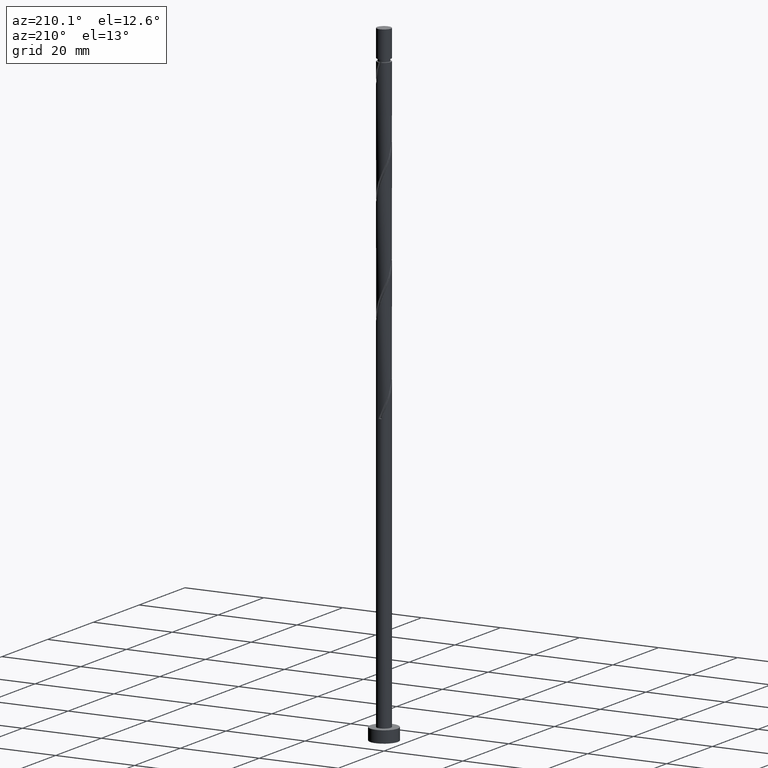
[diagram: clean part render]
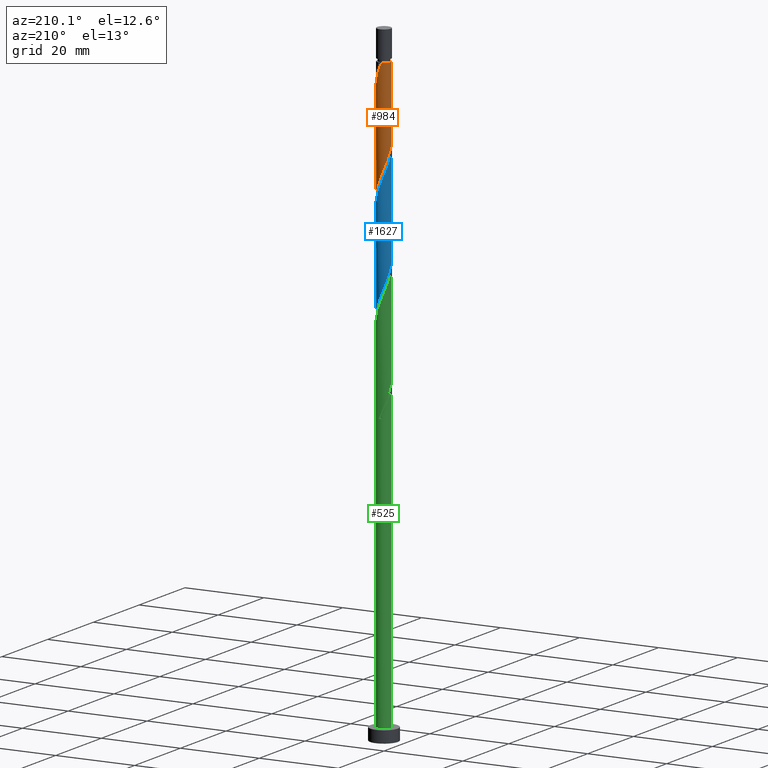
[diagram: same view with three faces highlighted in distinct colors, each labeled with its STEP entity id]
A machine part, auxiliary view with three faces highlighted in distinct colors.
Their STEP definitions:

[orange] entity #984 — the highlighted cylindrical surface (edge-blend (fillet) strip) has radius 1.75 mm, axis along (-0, -0, -1).
#10 = EDGE_CURVE ( 'NONE', #568, #112, #354, .T. ) ;
#39 = CARTESIAN_POINT ( 'NONE',  ( 1.749999999999999556, 0.2004256229239652076, 120.5351208264819149 ) ) ;
#57 = CARTESIAN_POINT ( 'NONE',  ( 0.3997300804350928383, 1.722214989085766534, 150.7148579093612000 ) ) ;
#112 = VERTEX_POINT ( 'NONE', #1198 ) ;
#128 = CARTESIAN_POINT ( 'NONE',  ( -1.749999999999999556, 0.05035717141668967500, 133.2603962021257189 ) ) ;
#135 = CARTESIAN_POINT ( 'NONE',  ( 0.1016658287859386472, 1.765070158688766710, 126.4724336669369791 ) ) ;
#136 = EDGE_CURVE ( 'NONE', #1620, #1633, #723, .T. ) ;
#167 = ORIENTED_EDGE ( 'NONE', *, *, #960, .F. ) ;
#170 = DIRECTION ( 'NONE',  ( -1.000000000000000000, 0.000000000000000000, 0.000000000000000000 ) ) ;
#192 = EDGE_CURVE ( 'NONE', #1620, #112, #1384, .T. ) ;
#229 = DIRECTION ( 'NONE',  ( -0.000000000000000000, -0.000000000000000000, -1.000000000000000000 ) ) ;
#250 = ORIENTED_EDGE ( 'NONE', *, *, #10, .F. ) ;
#280 = CARTESIAN_POINT ( 'NONE',  ( 1.039795711094357200, 1.429906809909687881, 124.0481912426945570 ) ) ;
#285 = CARTESIAN_POINT ( 'NONE',  ( 0.6342361581303447293, 1.631025596279859213, 150.1087973033006051 ) ) ;
#288 = CARTESIAN_POINT ( 'NONE',  ( 0.000000000000000000, 0.000000000000000000, 152.5330397275430414 ) ) ;
#304 = CARTESIAN_POINT ( 'NONE',  ( 1.400527980390353644, 1.079041232752500745, 122.8360700305733388 ) ) ;
#318 = CARTESIAN_POINT ( 'NONE',  ( 1.647983256157279808, 0.5887709125162859936, 146.4724336669369507 ) ) ;
#329 = CARTESIAN_POINT ( 'NONE',  ( 1.220161845742355533, 1.254474021331094757, 123.4421306366339479 ) ) ;
#343 = AXIS2_PLACEMENT_3D ( 'NONE', #1580, #811, #170 ) ;
#354 =( BOUNDED_CURVE ( )  B_SPLINE_CURVE ( 2, ( #1186, #1585, #1453, #1062, #318, #440, #1448, #481, #975, #604, #285, #57, #784, #900, #1171 ),
 .UNSPECIFIED., .F., .T. ) 
 B_SPLINE_CURVE_WITH_KNOTS ( ( 3, 2, 2, 2, 2, 2, 2, 3 ),
 ( 0.6795252162417512176, 0.6818181818181818787, 0.6931818181818180102, 0.7045454545454544748, 0.7159090909090906063, 0.7272727272727270709, 0.7386363636363633134, 0.7499999999999996669 ),
 .UNSPECIFIED. ) 
 CURVE ( )  GEOMETRIC_REPRESENTATION_ITEM ( )  RATIONAL_B_SPLINE_CURVE ( ( 0.9061101570135701166, 0.9072237824201522249, 0.9090909090909298218, 0.8998376744372320601, 0.9090909090909298218, 0.8998376744372320601, 0.9090909090909298218, 0.8998376744372320601, 0.9090909090909298218, 0.8998376744372320601, 0.9090909090909298218, 0.8998376744372320601, 0.9090909090909298218, 0.8998376744372322822, 0.9090909090909295998 ) ) 
 REPRESENTATION_ITEM ( '' )  );
#376 = CARTESIAN_POINT ( 'NONE',  ( -1.749999999999993783, 0.000000000000000000, 152.5330397275430414 ) ) ;
#382 = VECTOR ( 'NONE', #229, 1000.000000000000000 ) ;
#403 = CARTESIAN_POINT ( 'NONE',  ( -0.1490321258245765057, 1.743642573887265401, 127.0784942729976166 ) ) ;
#429 = EDGE_CURVE ( 'NONE', #568, #933, #971, .T. ) ;
#432 = DIRECTION ( 'NONE',  ( -0.000000000000000000, -0.000000000000000000, -1.000000000000000000 ) ) ;
#440 = CARTESIAN_POINT ( 'NONE',  ( 1.563330778801824472, 0.8257151336188608415, 147.0784942729976024 ) ) ;
#481 = CARTESIAN_POINT ( 'NONE',  ( 1.267374061878526526, 1.232709046415193743, 148.2906154851187921 ) ) ;
#500 = CARTESIAN_POINT ( 'NONE',  ( -1.563330778801821141, 0.8257151336188601753, 131.3209185154218233 ) ) ;
#514 = CARTESIAN_POINT ( 'NONE',  ( -1.415352420340172168, 1.029212090017026293, 130.7148579093612284 ) ) ;
#518 = DIRECTION ( 'NONE',  ( -0.000000000000000000, -0.000000000000000000, -1.000000000000000000 ) ) ;
#568 = VERTEX_POINT ( 'NONE', #1625 ) ;
#604 = CARTESIAN_POINT ( 'NONE',  ( 0.8687422358255972865, 1.539836203473952558, 149.5027366972400387 ) ) ;
#629 = CARTESIAN_POINT ( 'NONE',  ( 0.3482456029873183256, 1.714999999999999636, 125.8663730608763558 ) ) ;
#634 = CARTESIAN_POINT ( 'NONE',  ( 0.5948253771886972130, 1.664929841311231895, 125.2603124548157467 ) ) ;
#643 = AXIS2_PLACEMENT_3D ( 'NONE', #288, #432, #1175 ) ;
#723 = LINE ( 'NONE', #1428, #1157 ) ;
#753 = CARTESIAN_POINT ( 'NONE',  ( -1.267374061878522973, 1.232709046415192855, 130.1087973033006051 ) ) ;
#765 = ORIENTED_EDGE ( 'NONE', *, *, #136, .F. ) ;
#767 = CARTESIAN_POINT ( 'NONE',  ( -1.747104289494322282, 0.1006310172389180968, 133.1391003336036931 ) ) ;
#784 = CARTESIAN_POINT ( 'NONE',  ( 0.1490321258245772273, 1.743642573887268510, 151.3209185154218517 ) ) ;
#811 = DIRECTION ( 'NONE',  ( -0.000000000000000000, -0.000000000000000000, -1.000000000000000000 ) ) ;
#849 = CARTESIAN_POINT ( 'NONE',  ( 1.750000000000000000, 2.143131898507868297E-16, 160.0000000000000000 ) ) ;
#866 = CARTESIAN_POINT ( 'NONE',  ( -1.750000000000000000, -1.495682070349636959E-16, 133.3824942068439441 ) ) ;
#878 = CARTESIAN_POINT ( 'NONE',  ( -1.750000000000000000, -1.495682070349636959E-16, 133.3824942068439441 ) ) ;
#894 = CARTESIAN_POINT ( 'NONE',  ( -1.647983256157276033, 0.5887709125162857715, 131.9269791214824750 ) ) ;
#900 = CARTESIAN_POINT ( 'NONE',  ( -0.1016658287859307924, 1.765070158688769153, 151.9269791214824181 ) ) ;
#902 = CARTESIAN_POINT ( 'NONE',  ( 1.750000000000000000, 2.206131053765714330E-15, 120.0491608735106155 ) ) ;
#919 = FACE_OUTER_BOUND ( 'NONE', #1302, .T. ) ;
#933 = VERTEX_POINT ( 'NONE', #902 ) ;
#960 = EDGE_CURVE ( 'NONE', #1633, #933, #1356, .T. ) ;
#971 = LINE ( 'NONE', #849, #382 ) ;
#975 = CARTESIAN_POINT ( 'NONE',  ( 1.068058148852061295, 1.386272624944573595, 148.8966760911793585 ) ) ;
#984 = ADVANCED_FACE ( 'NONE', ( #919 ), #1439, .T. ) ;
#1026 = CARTESIAN_POINT ( 'NONE',  ( -0.6342361581303435081, 1.631025596279856549, 128.2906154851187921 ) ) ;
#1062 = CARTESIAN_POINT ( 'NONE',  ( 1.732635733512734477, 0.3518266914137114232, 145.8663730608764126 ) ) ;
#1067 = CARTESIAN_POINT ( 'NONE',  ( 1.647797801975738219, 0.6407581522230104687, 121.6239488184521207 ) ) ;
#1097 = ORIENTED_EDGE ( 'NONE', *, *, #192, .T. ) ;
#1135 = CARTESIAN_POINT ( 'NONE',  ( -1.068058148852059519, 1.386272624944571152, 129.5027366972400102 ) ) ;
#1157 = VECTOR ( 'NONE', #518, 1000.000000000000000 ) ;
#1171 = CARTESIAN_POINT ( 'NONE',  ( -0.3482456029873174930, 1.715000000000001190, 152.5330397275430698 ) ) ;
#1175 = DIRECTION ( 'NONE',  ( -1.000000000000000000, 0.000000000000000000, 0.000000000000000000 ) ) ;
#1186 = CARTESIAN_POINT ( 'NONE',  ( 1.750000000000002665, -7.254058041195681740E-16, 145.0169185815754531 ) ) ;
#1198 = CARTESIAN_POINT ( 'NONE',  ( -0.3482456029873176040, 1.715000000000001412, 152.5330397275430698 ) ) ;
#1201 = CARTESIAN_POINT ( 'NONE',  ( 1.524162891183045820, 0.8598996924877563286, 122.2300094245127298 ) ) ;
#1270 = CARTESIAN_POINT ( 'NONE',  ( -0.3997300804350916725, 1.722214989085763426, 127.6845548790581972 ) ) ;
#1302 = EDGE_LOOP ( 'NONE', ( #250, #1309, #167, #765, #1097 ) ) ;
#1309 = ORIENTED_EDGE ( 'NONE', *, *, #429, .T. ) ;
#1356 =( BOUNDED_CURVE ( )  B_SPLINE_CURVE ( 2, ( #878, #128, #767, #1652, #894, #500, #514, #753, #1135, #1407, #1026, #1270, #403, #135, #629, #634, #1422, #280, #329, #304, #1201, #1067, #1474, #39, #1446 ),
 .UNSPECIFIED., .F., .T. ) 
 B_SPLINE_CURVE_WITH_KNOTS ( ( 3, 2, 2, 2, 2, 2, 2, 2, 2, 2, 2, 2, 3 ),
 ( 0.4295252162417513286, 0.4318181818181818232, 0.4431818181818181768, 0.4545454545454545303, 0.4659090909090908839, 0.4772727272727272929, 0.4886363636363636465, 0.5000000000000000000, 0.5113636363636363535, 0.5227272727272727071, 0.5340909090909090606, 0.5454545454545454142, 0.5545252162417512176 ),
 .UNSPECIFIED. ) 
 CURVE ( )  GEOMETRIC_REPRESENTATION_ITEM ( )  RATIONAL_B_SPLINE_CURVE ( ( 0.9061101570135632333, 0.9072237824201453416, 0.9090909090909228274, 0.8998376744372251768, 0.9090909090909228274, 0.8998376744372251768, 0.9090909090909228274, 0.8998376744372251768, 0.9090909090909228274, 0.8998376744372251768, 0.9090909090909228274, 0.8998376744372251768, 0.9090909090909228274, 0.8998376744372251768, 0.9090909090909228274, 0.8998376744372251768, 0.9090909090909228274, 0.8998376744372251768, 0.9090909090909228274, 0.8998376744372251768, 0.9090909090909228274, 0.8998376744372251768, 0.9090909090909228274, 0.9017048011080027736, 0.9061101570135631222 ) ) 
 REPRESENTATION_ITEM ( '' )  );
#1384 = CIRCLE ( 'NONE', #643, 1.749999999999993783 ) ;
#1407 = CARTESIAN_POINT ( 'NONE',  ( -0.8687422358255956212, 1.539836203473949450, 128.8966760911793870 ) ) ;
#1422 = CARTESIAN_POINT ( 'NONE',  ( 0.8173105441415273731, 1.547418325610460110, 124.6542518487551519 ) ) ;
#1428 = CARTESIAN_POINT ( 'NONE',  ( -1.750000000000000000, 0.000000000000000000, 160.0000000000000000 ) ) ;
#1439 = CYLINDRICAL_SURFACE ( 'NONE', #343, 1.750000000000000000 ) ;
#1446 = CARTESIAN_POINT ( 'NONE',  ( 1.750000000000000000, 2.206131053765713936E-15, 120.0491608735106155 ) ) ;
#1448 = CARTESIAN_POINT ( 'NONE',  ( 1.415352420340175721, 1.029212090017027181, 147.6845548790582257 ) ) ;
#1453 = CARTESIAN_POINT ( 'NONE',  ( 1.747104289494325169, 0.1006310172389175556, 145.2603124548157325 ) ) ;
#1474 = CARTESIAN_POINT ( 'NONE',  ( 1.704685323725825263, 0.3956614045794430434, 121.0178882123915685 ) ) ;
#1580 = CARTESIAN_POINT ( 'NONE',  ( 0.000000000000000000, 0.000000000000000000, 160.0000000000000000 ) ) ;
#1585 = CARTESIAN_POINT ( 'NONE',  ( 1.750000000000002887, 0.05035717141668596963, 145.1390165862936499 ) ) ;
#1620 = VERTEX_POINT ( 'NONE', #376 ) ;
#1625 = CARTESIAN_POINT ( 'NONE',  ( 1.750000000000002665, -7.254058041195681740E-16, 145.0169185815754531 ) ) ;
#1633 = VERTEX_POINT ( 'NONE', #866 ) ;
#1652 = CARTESIAN_POINT ( 'NONE',  ( -1.732635733512731591, 0.3518266914137115897, 132.5330397275430414 ) ) ;

[blue] entity #1627 — the highlighted cylindrical surface (edge-blend (fillet) strip) has radius 1.75 mm, axis along (-0, -0, -1).
#84 = CARTESIAN_POINT ( 'NONE',  ( -1.750000000000000000, 0.2004256229239782250, 131.1976252952708251 ) ) ;
#93 = CARTESIAN_POINT ( 'NONE',  ( -1.647797801975740661, 0.6407581522230131332, 130.1087973033006335 ) ) ;
#103 = CARTESIAN_POINT ( 'NONE',  ( -1.749999999999999334, 0.05035717141669089625, 106.5937295354590191 ) ) ;
#140 = CARTESIAN_POINT ( 'NONE',  ( -0.3482456029873178260, 1.715000000000002300, 125.8663730608763700 ) ) ;
#153 = CARTESIAN_POINT ( 'NONE',  ( 1.704685323725825263, 0.3956614045794430434, 94.35122154572486863 ) ) ;
#254 = CARTESIAN_POINT ( 'NONE',  ( -0.3997300804350916725, 1.722214989085763426, 101.0178882123915258 ) ) ;
#258 = CARTESIAN_POINT ( 'NONE',  ( 1.068058148852061295, 1.386272624944573595, 122.2300094245127582 ) ) ;
#287 = CARTESIAN_POINT ( 'NONE',  ( 0.8173105441415273731, 1.547418325610460110, 97.98758518208852308 ) ) ;
#314 = EDGE_CURVE ( 'NONE', #741, #1340, #802, .T. ) ;
#362 = CARTESIAN_POINT ( 'NONE',  ( -1.267374061878522973, 1.232709046415192855, 103.4421306366339621 ) ) ;
#379 = CARTESIAN_POINT ( 'NONE',  ( 1.400527980390353644, 1.079041232752500745, 96.16940336390668165 ) ) ;
#386 = CARTESIAN_POINT ( 'NONE',  ( -0.1490321258245765057, 1.743642573887265401, 100.4118276063309310 ) ) ;
#388 =( BOUNDED_CURVE ( )  B_SPLINE_CURVE ( 2, ( #1236, #103, #598, #1106, #1637, #483, #1510, #362, #1660, #1156, #520, #254, #386, #1285, #622, #1143, #287, #761, #1545, #379, #1563, #887, #153, #507, #1012 ),
 .UNSPECIFIED., .F., .T. ) 
 B_SPLINE_CURVE_WITH_KNOTS ( ( 3, 2, 2, 2, 2, 2, 2, 2, 2, 2, 2, 2, 3 ),
 ( 0.6795252162417513286, 0.6818181818181817677, 0.6931818181818182323, 0.7045454545454545858, 0.7159090909090909394, 0.7272727272727272929, 0.7386363636363636465, 0.7500000000000000000, 0.7613636363636363535, 0.7727272727272727071, 0.7840909090909090606, 0.7954545454545454142, 0.8045252162417511066 ),
 .UNSPECIFIED. ) 
 CURVE ( )  GEOMETRIC_REPRESENTATION_ITEM ( )  RATIONAL_B_SPLINE_CURVE ( ( 0.9061101570135631222, 0.9072237824201453416, 0.9090909090909228274, 0.8998376744372251768, 0.9090909090909228274, 0.8998376744372251768, 0.9090909090909228274, 0.8998376744372251768, 0.9090909090909228274, 0.8998376744372251768, 0.9090909090909228274, 0.8998376744372251768, 0.9090909090909228274, 0.8998376744372251768, 0.9090909090909228274, 0.8998376744372251768, 0.9090909090909228274, 0.8998376744372251768, 0.9090909090909228274, 0.8998376744372251768, 0.9090909090909228274, 0.8998376744372251768, 0.9090909090909228274, 0.9017048011080028846, 0.9061101570135630112 ) ) 
 REPRESENTATION_ITEM ( '' )  );
#390 = AXIS2_PLACEMENT_3D ( 'NONE', #400, #505, #627 ) ;
#400 = CARTESIAN_POINT ( 'NONE',  ( 0.000000000000000000, 0.000000000000000000, 160.0000000000000000 ) ) ;
#413 = ORIENTED_EDGE ( 'NONE', *, *, #436, .F. ) ;
#423 = VERTEX_POINT ( 'NONE', #710 ) ;
#436 = EDGE_CURVE ( 'NONE', #741, #423, #1129, .T. ) ;
#457 = CARTESIAN_POINT ( 'NONE',  ( -0.8173105441415282613, 1.547418325610463219, 127.0784942729975882 ) ) ;
#465 = CARTESIAN_POINT ( 'NONE',  ( -1.750000000000000000, 0.000000000000000000, 160.0000000000000000 ) ) ;
#483 = CARTESIAN_POINT ( 'NONE',  ( -1.563330778801821141, 0.8257151336188601753, 104.6542518487551661 ) ) ;
#486 = CARTESIAN_POINT ( 'NONE',  ( 1.415352420340175721, 1.029212090017027181, 121.0178882123915258 ) ) ;
#487 = CARTESIAN_POINT ( 'NONE',  ( 1.747104289494325169, 0.1006310172389175556, 118.5936457881491037 ) ) ;
#496 = CARTESIAN_POINT ( 'NONE',  ( 1.647983256157279808, 0.5887709125162859936, 119.8057670002703219 ) ) ;
#505 = DIRECTION ( 'NONE',  ( -0.000000000000000000, -0.000000000000000000, -1.000000000000000000 ) ) ;
#507 = CARTESIAN_POINT ( 'NONE',  ( 1.749999999999998890, 0.2004256229239675668, 93.86845415981525775 ) ) ;
#512 = ORIENTED_EDGE ( 'NONE', *, *, #1423, .F. ) ;
#520 = CARTESIAN_POINT ( 'NONE',  ( -0.6342361581303435081, 1.631025596279856549, 101.6239488184521491 ) ) ;
#524 = CARTESIAN_POINT ( 'NONE',  ( -1.749999999999999778, 2.295871977986692479E-15, 106.7158275401772585 ) ) ;
#587 = CARTESIAN_POINT ( 'NONE',  ( -1.704685323725828150, 0.3956614045794447088, 130.7148579093612284 ) ) ;
#598 = CARTESIAN_POINT ( 'NONE',  ( -1.747104289494322282, 0.1006310172389180968, 106.4724336669369649 ) ) ;
#601 = CARTESIAN_POINT ( 'NONE',  ( 1.750000000000003109, 1.712555970550320905E-15, 118.3502519149088243 ) ) ;
#617 = CYLINDRICAL_SURFACE ( 'NONE', #390, 1.750000000000000000 ) ;
#622 = CARTESIAN_POINT ( 'NONE',  ( 0.3482456029873183256, 1.714999999999999636, 99.19970639420969860 ) ) ;
#627 = DIRECTION ( 'NONE',  ( -1.000000000000000000, 0.000000000000000000, 0.000000000000000000 ) ) ;
#710 = CARTESIAN_POINT ( 'NONE',  ( -1.750000000000002665, 6.655785213055831689E-16, 131.6835852482421103 ) ) ;
#730 = CARTESIAN_POINT ( 'NONE',  ( 0.8687422358255972865, 1.539836203473952558, 122.8360700305733388 ) ) ;
#741 = VERTEX_POINT ( 'NONE', #1002 ) ;
#759 = ORIENTED_EDGE ( 'NONE', *, *, #915, .F. ) ;
#761 = CARTESIAN_POINT ( 'NONE',  ( 1.039795711094357200, 1.429906809909687881, 97.38152457602787138 ) ) ;
#802 = LINE ( 'NONE', #1312, #1412 ) ;
#824 = EDGE_LOOP ( 'NONE', ( #413, #1083, #759, #512 ) ) ;
#835 = DIRECTION ( 'NONE',  ( -0.000000000000000000, -0.000000000000000000, -1.000000000000000000 ) ) ;
#851 = CARTESIAN_POINT ( 'NONE',  ( 1.750000000000000000, 2.206131053765714330E-15, 93.38249420684394408 ) ) ;
#887 = CARTESIAN_POINT ( 'NONE',  ( 1.647797801975738219, 0.6407581522230104687, 94.95728215178546350 ) ) ;
#915 = EDGE_CURVE ( 'NONE', #1505, #1340, #388, .T. ) ;
#949 = CARTESIAN_POINT ( 'NONE',  ( -1.220161845742357754, 1.254474021331096756, 128.2906154851188205 ) ) ;
#965 = CARTESIAN_POINT ( 'NONE',  ( -1.039795711094358532, 1.429906809909691212, 127.6845548790582114 ) ) ;
#976 = CARTESIAN_POINT ( 'NONE',  ( -0.5948253771886976571, 1.664929841311235670, 126.4724336669369791 ) ) ;
#1002 = CARTESIAN_POINT ( 'NONE',  ( 1.750000000000002887, 1.712555970550320905E-15, 118.3502519149088243 ) ) ;
#1004 = CARTESIAN_POINT ( 'NONE',  ( 1.563330778801824472, 0.8257151336188608415, 120.4118276063309168 ) ) ;
#1012 = CARTESIAN_POINT ( 'NONE',  ( 1.750000000000000000, 2.206131053765714330E-15, 93.38249420684394408 ) ) ;
#1083 = ORIENTED_EDGE ( 'NONE', *, *, #314, .T. ) ;
#1098 = CARTESIAN_POINT ( 'NONE',  ( -1.750000000000002665, 6.655785213055830703E-16, 131.6835852482421103 ) ) ;
#1106 = CARTESIAN_POINT ( 'NONE',  ( -1.732635733512731591, 0.3518266914137115897, 105.8663730608763558 ) ) ;
#1109 = CARTESIAN_POINT ( 'NONE',  ( 1.750000000000002220, 0.05035717141669400487, 118.4723499196270211 ) ) ;
#1118 = CARTESIAN_POINT ( 'NONE',  ( 0.6342361581303447293, 1.631025596279859213, 123.4421306366339621 ) ) ;
#1129 =( BOUNDED_CURVE ( )  B_SPLINE_CURVE ( 2, ( #601, #1109, #487, #1513, #496, #1004, #486, #1534, #258, #730, #1118, #1146, #1274, #1523, #140, #976, #457, #965, #949, #1361, #1224, #93, #587, #84, #1098 ),
 .UNSPECIFIED., .F., .T. ) 
 B_SPLINE_CURVE_WITH_KNOTS ( ( 3, 2, 2, 2, 2, 2, 2, 2, 2, 2, 2, 2, 3 ),
 ( 0.4295252162417514952, 0.4318181818181817677, 0.4431818181818182323, 0.4545454545454545858, 0.4659090909090909394, 0.4772727272727272929, 0.4886363636363636465, 0.5000000000000000000, 0.5113636363636363535, 0.5227272727272727071, 0.5340909090909091717, 0.5454545454545454142, 0.5545252162417507735 ),
 .UNSPECIFIED. ) 
 CURVE ( )  GEOMETRIC_REPRESENTATION_ITEM ( )  RATIONAL_B_SPLINE_CURVE ( ( 0.9061101570135703387, 0.9072237824201525580, 0.9090909090909298218, 0.8998376744372320601, 0.9090909090909298218, 0.8998376744372320601, 0.9090909090909298218, 0.8998376744372320601, 0.9090909090909298218, 0.8998376744372320601, 0.9090909090909298218, 0.8998376744372320601, 0.9090909090909298218, 0.8998376744372320601, 0.9090909090909298218, 0.8998376744372320601, 0.9090909090909298218, 0.8998376744372320601, 0.9090909090909298218, 0.8998376744372320601, 0.9090909090909298218, 0.8998376744372320601, 0.9090909090909298218, 0.9017048011080099901, 0.9061101570135696726 ) ) 
 REPRESENTATION_ITEM ( '' )  );
#1143 = CARTESIAN_POINT ( 'NONE',  ( 0.5948253771886972130, 1.664929841311231895, 98.59364578814908953 ) ) ;
#1146 = CARTESIAN_POINT ( 'NONE',  ( 0.3997300804350928383, 1.722214989085766534, 124.0481912426945712 ) ) ;
#1156 = CARTESIAN_POINT ( 'NONE',  ( -0.8687422358255956212, 1.539836203473949450, 102.2300094245127440 ) ) ;
#1213 = VECTOR ( 'NONE', #835, 1000.000000000000000 ) ;
#1224 = CARTESIAN_POINT ( 'NONE',  ( -1.524162891183048707, 0.8598996924877582160, 129.5027366972399818 ) ) ;
#1236 = CARTESIAN_POINT ( 'NONE',  ( -1.749999999999999778, 2.295871977986692479E-15, 106.7158275401772585 ) ) ;
#1274 = CARTESIAN_POINT ( 'NONE',  ( 0.1490321258245772273, 1.743642573887268510, 124.6542518487551519 ) ) ;
#1285 = CARTESIAN_POINT ( 'NONE',  ( 0.1016658287859386472, 1.765070158688766710, 99.80576700027029347 ) ) ;
#1312 = CARTESIAN_POINT ( 'NONE',  ( 1.750000000000000000, 2.143131898507868297E-16, 160.0000000000000000 ) ) ;
#1322 = DIRECTION ( 'NONE',  ( -0.000000000000000000, -0.000000000000000000, -1.000000000000000000 ) ) ;
#1340 = VERTEX_POINT ( 'NONE', #851 ) ;
#1361 = CARTESIAN_POINT ( 'NONE',  ( -1.400527980390356975, 1.079041232752502522, 128.8966760911794154 ) ) ;
#1412 = VECTOR ( 'NONE', #1322, 1000.000000000000000 ) ;
#1423 = EDGE_CURVE ( 'NONE', #423, #1505, #1622, .T. ) ;
#1505 = VERTEX_POINT ( 'NONE', #524 ) ;
#1510 = CARTESIAN_POINT ( 'NONE',  ( -1.415352420340172168, 1.029212090017026293, 104.0481912426945570 ) ) ;
#1513 = CARTESIAN_POINT ( 'NONE',  ( 1.732635733512734477, 0.3518266914137114232, 119.1997063942097270 ) ) ;
#1523 = CARTESIAN_POINT ( 'NONE',  ( -0.1016658287859382309, 1.765070158688770041, 125.2603124548157751 ) ) ;
#1534 = CARTESIAN_POINT ( 'NONE',  ( 1.267374061878526526, 1.232709046415193743, 121.6239488184520923 ) ) ;
#1543 = FACE_OUTER_BOUND ( 'NONE', #824, .T. ) ;
#1545 = CARTESIAN_POINT ( 'NONE',  ( 1.220161845742355533, 1.254474021331094757, 96.77546396996729072 ) ) ;
#1563 = CARTESIAN_POINT ( 'NONE',  ( 1.524162891183045820, 0.8598996924877563286, 95.56334275784607257 ) ) ;
#1622 = LINE ( 'NONE', #465, #1213 ) ;
#1627 = ADVANCED_FACE ( 'NONE', ( #1543 ), #617, .T. ) ;
#1637 = CARTESIAN_POINT ( 'NONE',  ( -1.647983256157276033, 0.5887709125162857715, 105.2603124548157609 ) ) ;
#1660 = CARTESIAN_POINT ( 'NONE',  ( -1.068058148852059519, 1.386272624944571152, 102.8360700305733388 ) ) ;

[green] entity #525 — the highlighted cylindrical surface (edge-blend (fillet) strip) has radius 1.75 mm, axis along (-0, -0, -1).
#21 = CARTESIAN_POINT ( 'NONE',  ( -1.732635733512731591, 0.3518266914137115897, 79.19970639420969860 ) ) ;
#30 = CARTESIAN_POINT ( 'NONE',  ( -1.750000000000000000, 0.000000000000000000, 160.0000000000000000 ) ) ;
#31 = CARTESIAN_POINT ( 'NONE',  ( -1.039795711094358532, 1.429906809909691212, 74.35122154572486863 ) ) ;
#71 = EDGE_LOOP ( 'NONE', ( #1290, #384, #1329, #883, #1338, #592, #490, #220 ) ) ;
#87 = CARTESIAN_POINT ( 'NONE',  ( -1.220161845742357754, 1.254474021331096756, 101.6239488184521349 ) ) ;
#97 = CARTESIAN_POINT ( 'NONE',  ( -1.400527980390356975, 1.079041232752502522, 102.2300094245127582 ) ) ;
#126 = CARTESIAN_POINT ( 'NONE',  ( -1.415352420340172168, 1.029212090017026293, 77.38152457602789980 ) ) ;
#131 = VERTEX_POINT ( 'NONE', #234 ) ;
#142 = CARTESIAN_POINT ( 'NONE',  ( 0.3482456029873182701, 1.714999999999999414, 72.53303972754302720 ) ) ;
#157 = VECTOR ( 'NONE', #926, 1000.000000000000000 ) ;
#220 = ORIENTED_EDGE ( 'NONE', *, *, #1651, .F. ) ;
#228 = VECTOR ( 'NONE', #1130, 1000.000000000000000 ) ;
#230 = DIRECTION ( 'NONE',  ( -1.000000000000000000, 0.000000000000000000, 0.000000000000000000 ) ) ;
#233 = VERTEX_POINT ( 'NONE', #417 ) ;
#234 = CARTESIAN_POINT ( 'NONE',  ( 1.750000000000000000, 2.143131898507868297E-16, 3.000000000000000000 ) ) ;
#241 = CARTESIAN_POINT ( 'NONE',  ( -1.749999999999999334, 0.05035717141669089625, 79.92706286879237609 ) ) ;
#249 = VERTEX_POINT ( 'NONE', #1061 ) ;
#273 = CARTESIAN_POINT ( 'NONE',  ( -0.8687422358255956212, 1.539836203473949450, 75.56334275784610099 ) ) ;
#283 =( BOUNDED_CURVE ( )  B_SPLINE_CURVE ( 2, ( #1255, #1107, #1638, #468, #484, #717, #1353, #952, #338, #700, #830, #958, #708, #1249, #1219, #1644, #1228, #1503, #87, #97, #583, #1494, #493, #1101, #1520 ),
 .UNSPECIFIED., .F., .T. ) 
 B_SPLINE_CURVE_WITH_KNOTS ( ( 3, 2, 2, 2, 2, 2, 2, 2, 2, 2, 2, 2, 3 ),
 ( 0.1795252162417514119, 0.1818181818181817677, 0.1931818181818182323, 0.2045454545454545858, 0.2159090909090909394, 0.2272727272727272929, 0.2386363636363636465, 0.2500000000000000000, 0.2613636363636363535, 0.2727272727272727071, 0.2840909090909090606, 0.2954545454545454142, 0.3045252162417511066 ),
 .UNSPECIFIED. ) 
 CURVE ( )  GEOMETRIC_REPRESENTATION_ITEM ( )  RATIONAL_B_SPLINE_CURVE ( ( 0.9061101570135702277, 0.9072237824201524470, 0.9090909090909298218, 0.8998376744372320601, 0.9090909090909298218, 0.8998376744372320601, 0.9090909090909298218, 0.8998376744372320601, 0.9090909090909298218, 0.8998376744372320601, 0.9090909090909298218, 0.8998376744372320601, 0.9090909090909298218, 0.8998376744372320601, 0.9090909090909298218, 0.8998376744372320601, 0.9090909090909298218, 0.8998376744372320601, 0.9090909090909298218, 0.8998376744372320601, 0.9090909090909298218, 0.8998376744372320601, 0.9090909090909298218, 0.9017048011080097680, 0.9061101570135700056 ) ) 
 REPRESENTATION_ITEM ( '' )  );
#292 = EDGE_CURVE ( 'NONE', #848, #233, #448, .T. ) ;
#338 = CARTESIAN_POINT ( 'NONE',  ( 1.068058148852061295, 1.386272624944573595, 95.56334275784605836 ) ) ;
#366 = CARTESIAN_POINT ( 'NONE',  ( 0.000000000000000000, 0.000000000000000000, 72.53303972754302720 ) ) ;
#384 = ORIENTED_EDGE ( 'NONE', *, *, #510, .T. ) ;
#404 = CARTESIAN_POINT ( 'NONE',  ( -1.750000000000002887, 3.103540295975472544E-15, 105.0169185815754958 ) ) ;
#409 = EDGE_CURVE ( 'NONE', #848, #1221, #1005, .T. ) ;
#410 = DIRECTION ( 'NONE',  ( 1.000000000000000000, 0.000000000000000000, 0.000000000000000000 ) ) ;
#417 = CARTESIAN_POINT ( 'NONE',  ( -1.750000000000002887, -1.772383253364305615E-15, 78.35025191490881014 ) ) ;
#447 = CYLINDRICAL_SURFACE ( 'NONE', #924, 1.750000000000000000 ) ;
#448 =( BOUNDED_CURVE ( )  B_SPLINE_CURVE ( 2, ( #1297, #1432, #1048, #31, #533, #910, #1440, #1136, #1661, #1540, #1457 ),
 .UNSPECIFIED., .F., .T. ) 
 B_SPLINE_CURVE_WITH_KNOTS ( ( 3, 2, 2, 2, 2, 3 ),
 ( 0.000000000000000000, 0.01136363636363635181, 0.02272727272727270362, 0.03409090909090906063, 0.04545454545454540723, 0.05452521624175116211 ),
 .UNSPECIFIED. ) 
 CURVE ( )  GEOMETRIC_REPRESENTATION_ITEM ( )  RATIONAL_B_SPLINE_CURVE ( ( 0.9090909090909298218, 0.8998376744372320601, 0.9090909090909298218, 0.8998376744372320601, 0.9090909090909298218, 0.8998376744372320601, 0.9090909090909298218, 0.8998376744372320601, 0.9090909090909298218, 0.9017048011080097680, 0.9061101570135700056 ) ) 
 REPRESENTATION_ITEM ( '' )  );
#468 = CARTESIAN_POINT ( 'NONE',  ( 1.732635733512734477, 0.3518266914137114232, 92.53303972754304141 ) ) ;
#476 = DIRECTION ( 'NONE',  ( -0.000000000000000000, -0.000000000000000000, -1.000000000000000000 ) ) ;
#480 = VERTEX_POINT ( 'NONE', #1429 ) ;
#484 = CARTESIAN_POINT ( 'NONE',  ( 1.647983256157279808, 0.5887709125162859936, 93.13910033360365048 ) ) ;
#490 = ORIENTED_EDGE ( 'NONE', *, *, #1552, .F. ) ;
#493 = CARTESIAN_POINT ( 'NONE',  ( -1.704685323725828150, 0.3956614045794447088, 104.0481912426945570 ) ) ;
#498 = CARTESIAN_POINT ( 'NONE',  ( -1.267374061878522973, 1.232709046415192855, 76.77546396996726230 ) ) ;
#510 = EDGE_CURVE ( 'NONE', #480, #131, #891, .T. ) ;
#517 = LINE ( 'NONE', #750, #228 ) ;
#523 = VERTEX_POINT ( 'NONE', #1331 ) ;
#525 = ADVANCED_FACE ( 'NONE', ( #1044 ), #447, .T. ) ;
#527 = CARTESIAN_POINT ( 'NONE',  ( -0.3482456029873177150, 1.715000000000002300, 72.53303972754302720 ) ) ;
#533 = CARTESIAN_POINT ( 'NONE',  ( -1.220161845742357754, 1.254474021331096756, 74.95728215178550613 ) ) ;
#541 = DIRECTION ( 'NONE',  ( -0.000000000000000000, -0.000000000000000000, -1.000000000000000000 ) ) ;
#583 = CARTESIAN_POINT ( 'NONE',  ( -1.524162891183048707, 0.8598996924877582160, 102.8360700305733673 ) ) ;
#592 = ORIENTED_EDGE ( 'NONE', *, *, #409, .T. ) ;
#620 = EDGE_CURVE ( 'NONE', #480, #704, #283, .T. ) ;
#632 = CARTESIAN_POINT ( 'NONE',  ( -0.3997300804350916725, 1.722214989085763426, 74.35122154572484021 ) ) ;
#688 = CARTESIAN_POINT ( 'NONE',  ( 0.000000000000000000, 0.000000000000000000, 160.0000000000000000 ) ) ;
#700 = CARTESIAN_POINT ( 'NONE',  ( 0.8687422358255972865, 1.539836203473952558, 96.16940336390668165 ) ) ;
#704 = VERTEX_POINT ( 'NONE', #404 ) ;
#708 = CARTESIAN_POINT ( 'NONE',  ( 0.1490321258245772273, 1.743642573887268510, 97.98758518208848045 ) ) ;
#717 = CARTESIAN_POINT ( 'NONE',  ( 1.563330778801824472, 0.8257151336188608415, 93.74516093966427377 ) ) ;
#732 = CARTESIAN_POINT ( 'NONE',  ( -1.747104289494322282, 0.1006310172389180968, 79.80576700027032189 ) ) ;
#737 = CIRCLE ( 'NONE', #1294, 1.750000000000000000 ) ;
#750 = CARTESIAN_POINT ( 'NONE',  ( -1.750000000000000000, 0.000000000000000000, 160.0000000000000000 ) ) ;
#758 = CARTESIAN_POINT ( 'NONE',  ( -1.068058148852059519, 1.386272624944571152, 76.16940336390666744 ) ) ;
#794 = EDGE_CURVE ( 'NONE', #131, #249, #737, .T. ) ;
#830 = CARTESIAN_POINT ( 'NONE',  ( 0.6342361581303447293, 1.631025596279859213, 96.77546396996727651 ) ) ;
#848 = VERTEX_POINT ( 'NONE', #527 ) ;
#883 = ORIENTED_EDGE ( 'NONE', *, *, #1064, .F. ) ;
#891 = LINE ( 'NONE', #1420, #1592 ) ;
#897 = CARTESIAN_POINT ( 'NONE',  ( -1.647983256157276033, 0.5887709125162857715, 78.59364578814911795 ) ) ;
#910 = CARTESIAN_POINT ( 'NONE',  ( -1.400527980390356975, 1.079041232752502522, 75.56334275784607257 ) ) ;
#924 = AXIS2_PLACEMENT_3D ( 'NONE', #688, #476, #230 ) ;
#926 = DIRECTION ( 'NONE',  ( -0.000000000000000000, -0.000000000000000000, -1.000000000000000000 ) ) ;
#952 = CARTESIAN_POINT ( 'NONE',  ( 1.267374061878526526, 1.232709046415193743, 94.95728215178546350 ) ) ;
#958 = CARTESIAN_POINT ( 'NONE',  ( 0.3997300804350928383, 1.722214989085766534, 97.38152457602788559 ) ) ;
#1005 = CIRCLE ( 'NONE', #1565, 1.750000000000000000 ) ;
#1044 = FACE_OUTER_BOUND ( 'NONE', #71, .T. ) ;
#1048 = CARTESIAN_POINT ( 'NONE',  ( -0.8173105441415282613, 1.547418325610463219, 73.74516093966427377 ) ) ;
#1061 = CARTESIAN_POINT ( 'NONE',  ( -1.750000000000000000, 0.000000000000000000, 3.000000000000000000 ) ) ;
#1064 = EDGE_CURVE ( 'NONE', #233, #249, #1334, .T. ) ;
#1101 = CARTESIAN_POINT ( 'NONE',  ( -1.750000000000001776, 0.2004256229239690101, 104.5309586286041679 ) ) ;
#1103 = DIRECTION ( 'NONE',  ( -1.000000000000000000, 0.000000000000000000, 0.000000000000000000 ) ) ;
#1107 = CARTESIAN_POINT ( 'NONE',  ( 1.750000000000002887, 0.05035717141669216607, 91.80568325296034971 ) ) ;
#1120 = CARTESIAN_POINT ( 'NONE',  ( 0.1016658287859386472, 1.765070158688766710, 73.13910033360363627 ) ) ;
#1130 = DIRECTION ( 'NONE',  ( -0.000000000000000000, -0.000000000000000000, -1.000000000000000000 ) ) ;
#1136 = CARTESIAN_POINT ( 'NONE',  ( -1.647797801975740661, 0.6407581522230131332, 76.77546396996729072 ) ) ;
#1140 = CARTESIAN_POINT ( 'NONE',  ( -1.563330778801821141, 0.8257151336188601753, 77.98758518208849466 ) ) ;
#1174 =( BOUNDED_CURVE ( )  B_SPLINE_CURVE ( 2, ( #1657, #241, #732, #21, #897, #1140, #126, #498, #758, #273, #1536, #632, #1403, #1120, #142 ),
 .UNSPECIFIED., .F., .T. ) 
 B_SPLINE_CURVE_WITH_KNOTS ( ( 3, 2, 2, 2, 2, 2, 2, 3 ),
 ( 0.9295252162417513286, 0.9318181818181817677, 0.9431818181818182323, 0.9545454545454545858, 0.9659090909090909394, 0.9772727272727272929, 0.9886363636363636465, 1.000000000000000000 ),
 .UNSPECIFIED. ) 
 CURVE ( )  GEOMETRIC_REPRESENTATION_ITEM ( )  RATIONAL_B_SPLINE_CURVE ( ( 0.9061101570135631222, 0.9072237824201453416, 0.9090909090909228274, 0.8998376744372251768, 0.9090909090909228274, 0.8998376744372251768, 0.9090909090909228274, 0.8998376744372251768, 0.9090909090909228274, 0.8998376744372251768, 0.9090909090909228274, 0.8998376744372251768, 0.9090909090909228274, 0.8998376744372251768, 0.9090909090909228274 ) ) 
 REPRESENTATION_ITEM ( '' )  );
#1219 = CARTESIAN_POINT ( 'NONE',  ( -0.3482456029873178260, 1.715000000000002300, 99.19970639420974123 ) ) ;
#1221 = VERTEX_POINT ( 'NONE', #1467 ) ;
#1228 = CARTESIAN_POINT ( 'NONE',  ( -0.8173105441415282613, 1.547418325610463219, 100.4118276063309168 ) ) ;
#1249 = CARTESIAN_POINT ( 'NONE',  ( -0.1016658287859382309, 1.765070158688770041, 98.59364578814910374 ) ) ;
#1255 = CARTESIAN_POINT ( 'NONE',  ( 1.750000000000002887, 1.712555970550320905E-15, 91.68358524824213873 ) ) ;
#1290 = ORIENTED_EDGE ( 'NONE', *, *, #620, .F. ) ;
#1294 = AXIS2_PLACEMENT_3D ( 'NONE', #1557, #1531, #410 ) ;
#1297 = CARTESIAN_POINT ( 'NONE',  ( -0.3482456029873177150, 1.715000000000002300, 72.53303972754302720 ) ) ;
#1329 = ORIENTED_EDGE ( 'NONE', *, *, #794, .T. ) ;
#1331 = CARTESIAN_POINT ( 'NONE',  ( -1.750000000000000000, -2.580051571353123545E-15, 80.04916087351060128 ) ) ;
#1334 = LINE ( 'NONE', #30, #157 ) ;
#1338 = ORIENTED_EDGE ( 'NONE', *, *, #292, .F. ) ;
#1353 = CARTESIAN_POINT ( 'NONE',  ( 1.415352420340175721, 1.029212090017027181, 94.35122154572488284 ) ) ;
#1357 = DIRECTION ( 'NONE',  ( 0.000000000000000000, -0.000000000000000000, -1.000000000000000000 ) ) ;
#1403 = CARTESIAN_POINT ( 'NONE',  ( -0.1490321258245765057, 1.743642573887265401, 73.74516093966424535 ) ) ;
#1420 = CARTESIAN_POINT ( 'NONE',  ( 1.750000000000000000, 2.143131898507868297E-16, 160.0000000000000000 ) ) ;
#1429 = CARTESIAN_POINT ( 'NONE',  ( 1.750000000000002887, 1.712555970550320905E-15, 91.68358524824213873 ) ) ;
#1432 = CARTESIAN_POINT ( 'NONE',  ( -0.5948253771886976571, 1.664929841311235670, 73.13910033360363627 ) ) ;
#1440 = CARTESIAN_POINT ( 'NONE',  ( -1.524162891183048707, 0.8598996924877582160, 76.16940336390666744 ) ) ;
#1457 = CARTESIAN_POINT ( 'NONE',  ( -1.750000000000002887, -1.772383253364305615E-15, 78.35025191490881014 ) ) ;
#1467 = CARTESIAN_POINT ( 'NONE',  ( 0.3482456029873182701, 1.714999999999999414, 72.53303972754302720 ) ) ;
#1494 = CARTESIAN_POINT ( 'NONE',  ( -1.647797801975740661, 0.6407581522230131332, 103.4421306366339479 ) ) ;
#1503 = CARTESIAN_POINT ( 'NONE',  ( -1.039795711094358532, 1.429906809909691212, 101.0178882123915685 ) ) ;
#1520 = CARTESIAN_POINT ( 'NONE',  ( -1.750000000000002887, 3.103540295975472544E-15, 105.0169185815754958 ) ) ;
#1531 = DIRECTION ( 'NONE',  ( 0.000000000000000000, 0.000000000000000000, 1.000000000000000000 ) ) ;
#1536 = CARTESIAN_POINT ( 'NONE',  ( -0.6342361581303435081, 1.631025596279856549, 74.95728215178546350 ) ) ;
#1540 = CARTESIAN_POINT ( 'NONE',  ( -1.750000000000002442, 0.2004256229239678444, 77.86429196193749647 ) ) ;
#1552 = EDGE_CURVE ( 'NONE', #523, #1221, #1174, .T. ) ;
#1557 = CARTESIAN_POINT ( 'NONE',  ( 0.000000000000000000, 0.000000000000000000, 3.000000000000000000 ) ) ;
#1565 = AXIS2_PLACEMENT_3D ( 'NONE', #366, #1357, #1103 ) ;
#1592 = VECTOR ( 'NONE', #541, 1000.000000000000000 ) ;
#1638 = CARTESIAN_POINT ( 'NONE',  ( 1.747104289494325169, 0.1006310172389175556, 91.92697912148244654 ) ) ;
#1644 = CARTESIAN_POINT ( 'NONE',  ( -0.5948253771886976571, 1.664929841311235670, 99.80576700027032189 ) ) ;
#1651 = EDGE_CURVE ( 'NONE', #704, #523, #517, .T. ) ;
#1657 = CARTESIAN_POINT ( 'NONE',  ( -1.750000000000000000, -2.580051571353123545E-15, 80.04916087351060128 ) ) ;
#1661 = CARTESIAN_POINT ( 'NONE',  ( -1.704685323725828150, 0.3956614045794447088, 77.38152457602789980 ) ) ;